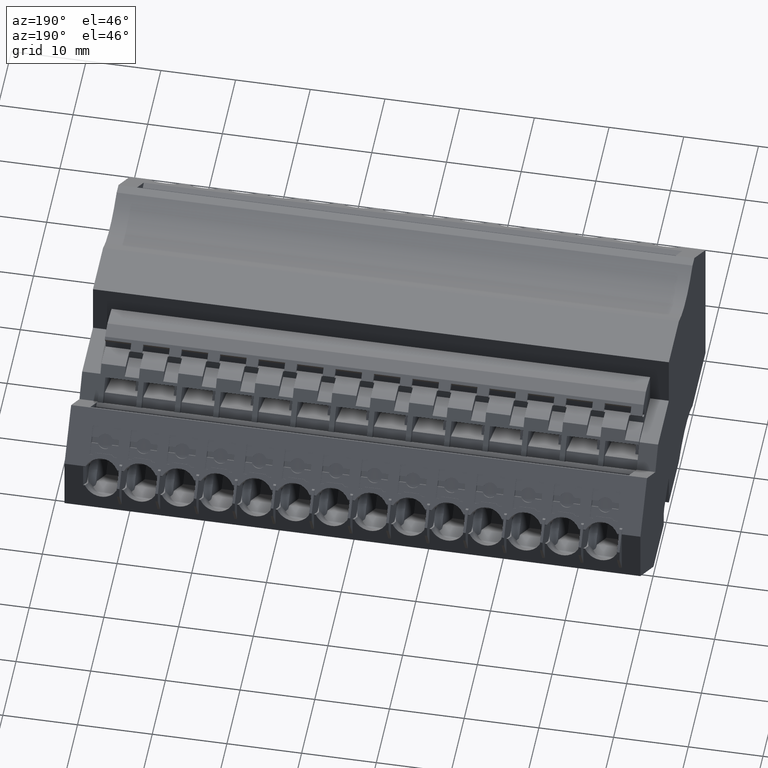
[diagram: clean part render]
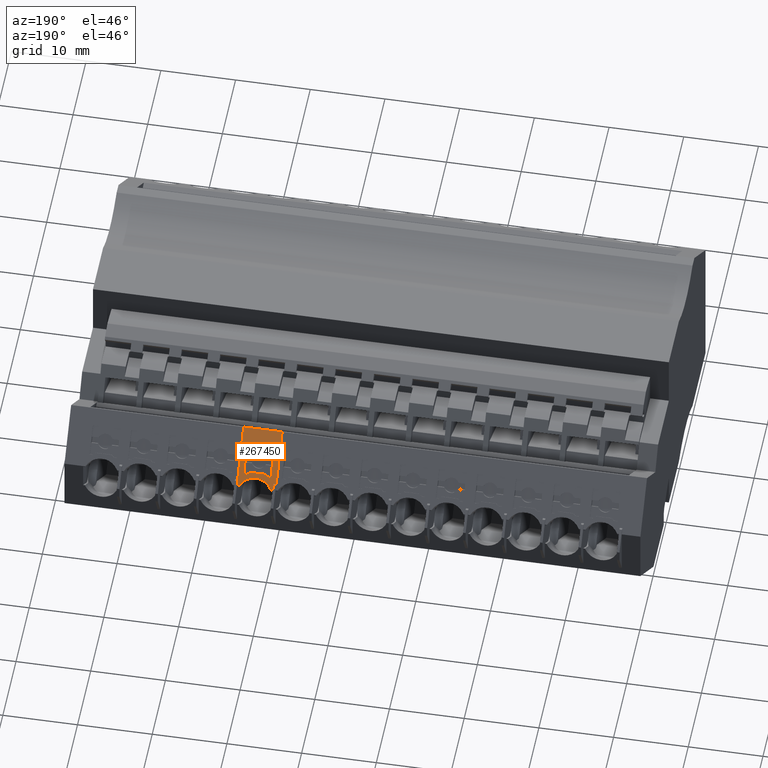
[diagram: same view with one face highlighted and labeled with its STEP entity id]
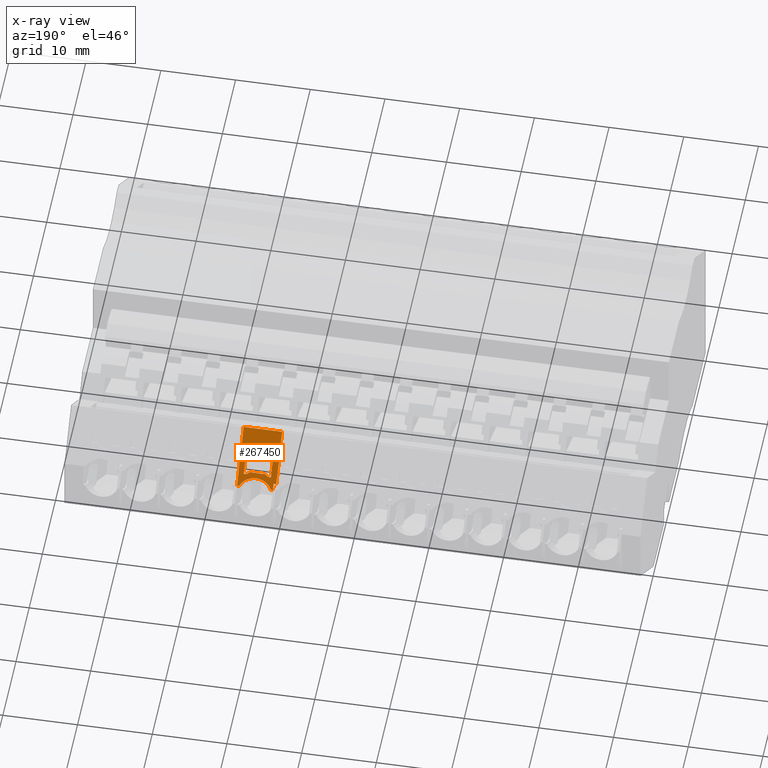
[diagram: x-ray of the same camera — body ghosted, the highlighted face saturated]
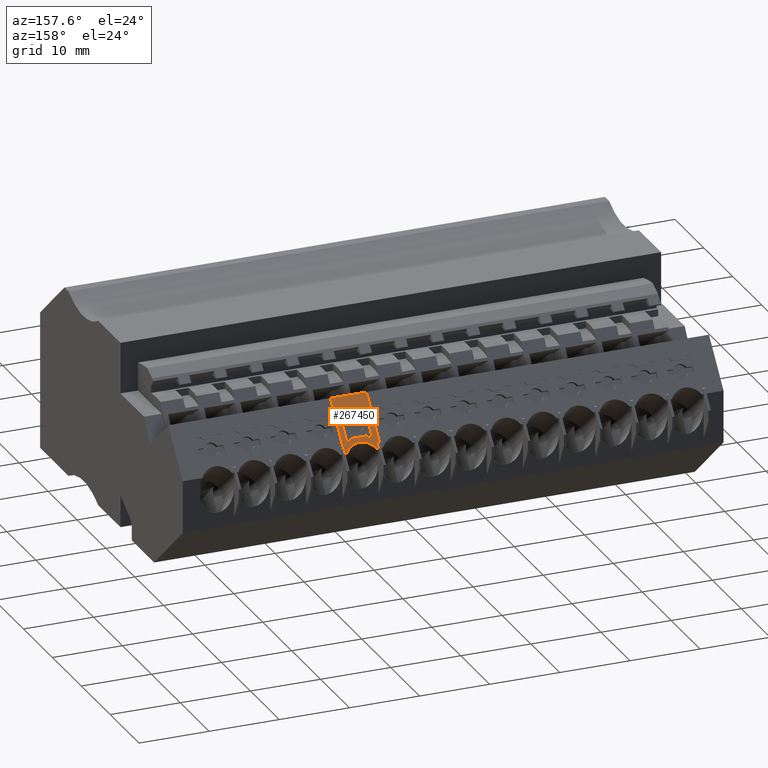
[diagram: same view with one face highlighted and labeled with its STEP entity id]
A machine part, auxiliary view. The second image highlights one B-rep face of the part: STEP entity #267450.
The next image is the same camera in x-ray: the body ghosted, the highlighted face saturated — about 0% of this face is hidden behind the body in this view.
A second angle (auxiliary view) of the same face is appended — the face is thin or edge-on in the first view.
In plain terms, the highlighted planar face has unit normal (-0, 0.766, 0.6428).
Its self-contained STEP definition (entity closure, byte-faithful):
#52010=CARTESIAN_POINT('',(468.596384244177,687.945804774738,
118.146374956295));
#52020=VERTEX_POINT('',#52010);
#52170=CARTESIAN_POINT('',(468.596384244377,687.945804773678,
116.043624543689));
#52180=VERTEX_POINT('',#52170);
#52210=CARTESIAN_POINT('',(468.596384244527,687.945804772884,
114.469999990516));
#52220=DIRECTION('',(-9.53799141692885E-11,5.04212003886608E-10,1.));
#52230=VECTOR('',#52220,1.);
#52240=LINE('',#52210,#52230);
#52250=EDGE_CURVE('',#52180,#52020,#52240,.T.);
#68330=CARTESIAN_POINT('',(468.789220506511,687.715991465011,
115.686098504337));
#68340=VERTEX_POINT('',#68330);
#68370=CARTESIAN_POINT('',(469.445138861636,686.934298407188,
114.469999991269));
#68380=DIRECTION('',(-0.413175910895737,0.49240387722599,
0.766044442802303));
#68390=VECTOR('',#68380,1.);
#68400=LINE('',#68370,#68390);
#68410=EDGE_CURVE('',#68340,#52180,#68400,.T.);
#104340=CARTESIAN_POINT('',(468.78922050629,687.715991466375,
118.50390099607));
#104350=VERTEX_POINT('',#104340);
#104450=CARTESIAN_POINT('',(466.613484180971,690.308933050951,
114.469999988756));
#104460=DIRECTION('',(0.413175910705188,-0.492403876400557,
0.766044443435656));
#104470=VECTOR('',#104460,1.);
#104480=LINE('',#104450,#104470);
#104490=EDGE_CURVE('',#52020,#104350,#104480,.T.);
#135930=CARTESIAN_POINT('',(464.820007045212,692.446315863434,
88.719999988555));
#135940=DIRECTION('',(-1.6947493584462E-11,4.10739884737656E-10,1.));
#135950=VECTOR('',#135940,1.);
#135960=LINE('',#135930,#135950);
#148470=CARTESIAN_POINT('',(466.571603105237,690.358844974804,
117.824024936821));
#148480=VERTEX_POINT('',#148470);
#148630=CARTESIAN_POINT('',(466.282348831724,690.703564795133,
118.274024702253));
#148640=VERTEX_POINT('',#148630);
#148670=CARTESIAN_POINT('',(468.727528782718,687.789512798111,
114.469999990632));
#148680=DIRECTION('',(0.454519477349067,-0.541675221128777,
-0.70710678085097));
#148690=VECTOR('',#148680,1.);
#148700=LINE('',#148670,#148690);
#148710=EDGE_CURVE('',#148640,#148480,#148700,.T.);
#164980=CARTESIAN_POINT('',(468.78922050655,687.715991464802,
115.269999950577));
#164990=VERTEX_POINT('',#164980);
#165020=CARTESIAN_POINT('',(468.789220506625,687.715991464401,
114.469999990687));
#165030=DIRECTION('',(-9.36638245300198E-11,5.02166847890709E-10,1.));
#165040=VECTOR('',#165030,1.);
#165050=LINE('',#165020,#165040);
#165060=EDGE_CURVE('',#164990,#68340,#165050,.T.);
#190750=CARTESIAN_POINT('',(469.853158787723,686.448039229634,
119.619999987393));
#190760=VERTEX_POINT('',#190750);
#190790=CARTESIAN_POINT('',(469.853158770504,686.44803921421,
114.469999991632));
#190800=DIRECTION('',(9.53019264641259E-11,2.76966234926162E-10,1.));
#190810=VECTOR('',#190800,1.);
#190820=LINE('',#190790,#190810);
#190830=CARTESIAN_POINT('',(469.853158770968,686.448039215559,
119.342742236906));
#190840=VERTEX_POINT('',#190830);
#190850=EDGE_CURVE('',#190840,#190760,#190820,.T.);
#252120=CARTESIAN_POINT('',(480.967221274263,673.202815271583,
73.2699999869654));
#252130=DIRECTION('',(0.766044443506127,0.642787609225153,
-6.26829308777775E-10));
#252140=DIRECTION('',(0.642787609225154,-0.766044443506128,
3.53694291000708E-10));
#252150=AXIS2_PLACEMENT_3D('',#252120,#252130,#252140);
#252160=PLANE('',#252150);
#266280=CARTESIAN_POINT('',(464.820007055873,692.446315890453,
114.469999984163));
#266290=VERTEX_POINT('',#266280);
#266300=CARTESIAN_POINT('',(464.820007060779,692.446315889628,
119.619999984281));
#266310=VERTEX_POINT('',#266300);
#266320=EDGE_CURVE('',#266290,#266310,#135960,.T.);
#266330=ORIENTED_EDGE('',*,*,#266320,.T.);
#266340=CARTESIAN_POINT('',(460.057092103898,698.122536902633,
114.469999981218));
#266350=DIRECTION('',(-0.642787609225153,0.766044443506128,
-3.97483338039747E-10));
#266360=VECTOR('',#266350,1.);
#266370=LINE('',#266340,#266360);
#266380=CARTESIAN_POINT('',(469.319520304124,687.084004774578,
114.469999986946));
#266390=VERTEX_POINT('',#266380);
#266400=EDGE_CURVE('',#266390,#266290,#266370,.T.);
#266410=ORIENTED_EDGE('',*,*,#266400,.T.);
#266420=CARTESIAN_POINT('',(469.319520304166,687.084004774575,
114.469999991158));
#266430=DIRECTION('',(-5.86570307982182E-11,4.60447375632641E-10,1.));
#266440=VECTOR('',#266430,1.);
#266450=LINE('',#266420,#266440);
#266460=CARTESIAN_POINT('',(469.319520304146,687.084004774736,
114.819999977934));
#266470=VERTEX_POINT('',#266460);
#266480=EDGE_CURVE('',#266390,#266470,#266450,.T.);
#266490=ORIENTED_EDGE('',*,*,#266480,.F.);
#266500=CARTESIAN_POINT('',(460.057092091255,698.12253689026,
114.819999973321));
#266510=DIRECTION('',(0.642787609117033,-0.766044443596851,
3.2011394940328E-10));
#266520=VECTOR('',#266510,1.);
#266530=LINE('',#266500,#266520);
#266540=CARTESIAN_POINT('',(469.853158771021,686.448039214307,
114.8199999782));
#266550=VERTEX_POINT('',#266540);
#266560=EDGE_CURVE('',#266470,#266550,#266530,.T.);
#266570=ORIENTED_EDGE('',*,*,#266560,.F.);
#266580=CARTESIAN_POINT('',(469.853158770962,686.448039213663,
114.469999991632));
#266590=DIRECTION('',(1.66699254649708E-10,1.918782124309E-10,1.));
#266600=VECTOR('',#266590,1.);
#266610=LINE('',#266580,#266600);
#266620=CARTESIAN_POINT('',(469.853158771067,686.448039213784,
115.097257719447));
#266630=VERTEX_POINT('',#266620);
#266640=EDGE_CURVE('',#266550,#266630,#266610,.T.);
#266650=ORIENTED_EDGE('',*,*,#266640,.F.);
#266660=CARTESIAN_POINT('',(470.572956142319,685.590218110188,
117.219999978552));
#266670=DIRECTION('',(-0.766044443609541,-0.642787609101909,
4.36973645764363E-10));
#266680=DIRECTION('',(-0.642787609101909,0.766044443609542,
-3.23562025759873E-10));
#266690=AXIS2_PLACEMENT_3D('',#266660,#266670,#266680);
#266700=CIRCLE('',#266690,2.40000000000534);
#266710=EDGE_CURVE('',#190840,#266630,#266700,.T.);
#266720=ORIENTED_EDGE('',*,*,#266710,.T.);
#266730=ORIENTED_EDGE('',*,*,#190850,.F.);
#266740=CARTESIAN_POINT('',(460.057092104377,698.122536907085,
119.619999981335));
#266750=DIRECTION('',(0.642787609225153,-0.766044443506128,
3.97483338039747E-10));
#266760=VECTOR('',#266750,1.);
#266770=LINE('',#266740,#266760);
#266780=CARTESIAN_POINT('',(469.319520319849,687.084004791648,
119.619999987063));
#266790=VERTEX_POINT('',#266780);
#266800=EDGE_CURVE('',#266790,#190760,#266770,.T.);
#266810=ORIENTED_EDGE('',*,*,#266800,.T.);
#266820=EDGE_CURVE('',#266310,#266790,#266770,.T.);
#266830=ORIENTED_EDGE('',*,*,#266820,.T.);
#266840=EDGE_LOOP('',(#266830,#266810,#266730,#266720,#266650,#266570,
#266490,#266410,#266330));
#266850=FACE_OUTER_BOUND('',#266840,.T.);
#266860=CARTESIAN_POINT('',(466.282348832144,690.703564793147,
114.469999988462));
#266870=DIRECTION('',(1.10339279182462E-10,-5.22039880910903E-10,-1.));
#266880=VECTOR('',#266870,1.);
#266890=LINE('',#266860,#266880);
#266900=CARTESIAN_POINT('',(466.282348831653,690.70356479547,
118.920000420438));
#266910=VERTEX_POINT('',#266900);
#266920=EDGE_CURVE('',#266910,#148640,#266890,.T.);
#266930=ORIENTED_EDGE('',*,*,#266920,.T.);
#266940=CARTESIAN_POINT('',(460.057092090542,698.122536892711,
118.920000416011));
#266950=DIRECTION('',(-0.642787609117033,0.766044443596851,
-4.570555116598E-10));
#266960=VECTOR('',#266950,1.);
#266970=LINE('',#266940,#266960);
#266980=CARTESIAN_POINT('',(468.78922050618,687.715991466668,
118.92000042222));
#266990=VERTEX_POINT('',#266980);
#267000=EDGE_CURVE('',#266990,#266910,#266970,.T.);
#267010=ORIENTED_EDGE('',*,*,#267000,.T.);
#267020=CARTESIAN_POINT('',(468.789220507357,687.715991463528,
114.469999990687));
#267030=DIRECTION('',(-2.64576927816554E-10,7.05853153061389E-10,1.));
#267040=VECTOR('',#267030,1.);
#267050=LINE('',#267020,#267040);
#267060=EDGE_CURVE('',#104350,#266990,#267050,.T.);
#267070=ORIENTED_EDGE('',*,*,#267060,.T.);
#267080=ORIENTED_EDGE('',*,*,#104490,.T.);
#267090=ORIENTED_EDGE('',*,*,#52250,.T.);
#267100=ORIENTED_EDGE('',*,*,#68410,.T.);
#267110=ORIENTED_EDGE('',*,*,#165060,.T.);
#267120=CARTESIAN_POINT('',(460.057092091177,698.122536890529,
115.269999944533));
#267130=DIRECTION('',(0.642787609117033,-0.766044443596851,
4.44888334671647E-10));
#267140=VECTOR('',#267130,1.);
#267150=LINE('',#267120,#267140);
#267160=CARTESIAN_POINT('',(466.282348832057,690.703564793562,
115.269999948842));
#267170=VERTEX_POINT('',#267160);
#267180=EDGE_CURVE('',#267170,#164990,#267150,.T.);
#267190=ORIENTED_EDGE('',*,*,#267180,.T.);
#267200=CARTESIAN_POINT('',(466.282348832145,690.703564793145,
114.469999988462));
#267210=DIRECTION('',(1.10339279182462E-10,-5.22039880910903E-10,-1.));
#267220=VECTOR('',#267210,1.);
#267230=LINE('',#267200,#267220);
#267240=CARTESIAN_POINT('',(466.282348831986,690.7035647939,
115.915976251527));
#267250=VERTEX_POINT('',#267240);
#267260=EDGE_CURVE('',#267250,#267170,#267230,.T.);
#267270=ORIENTED_EDGE('',*,*,#267260,.T.);
#267280=CARTESIAN_POINT('',(465.352893207091,691.811246875133,
114.469999987637));
#267290=DIRECTION('',(-0.454519477187463,0.541675220383874,
-0.707106781525476));
#267300=VECTOR('',#267290,1.);
#267310=LINE('',#267280,#267300);
#267320=CARTESIAN_POINT('',(466.571603105422,690.358844974014,
116.365976017431));
#267330=VERTEX_POINT('',#267320);
#267340=EDGE_CURVE('',#267330,#267250,#267310,.T.);
#267350=ORIENTED_EDGE('',*,*,#267340,.T.);
#267360=CARTESIAN_POINT('',(466.571603105663,690.358844972987,
114.469999988719));
#267370=DIRECTION('',(1.26972147129217E-10,-5.41862161071521E-10,-1.));
#267380=VECTOR('',#267370,1.);
#267390=LINE('',#267360,#267380);
#267400=EDGE_CURVE('',#148480,#267330,#267390,.T.);
#267410=ORIENTED_EDGE('',*,*,#267400,.T.);
#267420=ORIENTED_EDGE('',*,*,#148710,.T.);
#267430=EDGE_LOOP('',(#267420,#267410,#267350,#267270,#267190,#267110,
#267100,#267090,#267080,#267070,#267010,#266930));
#267440=FACE_BOUND('',#267430,.T.);
#267450=ADVANCED_FACE('',(#266850,#267440),#252160,.T.);